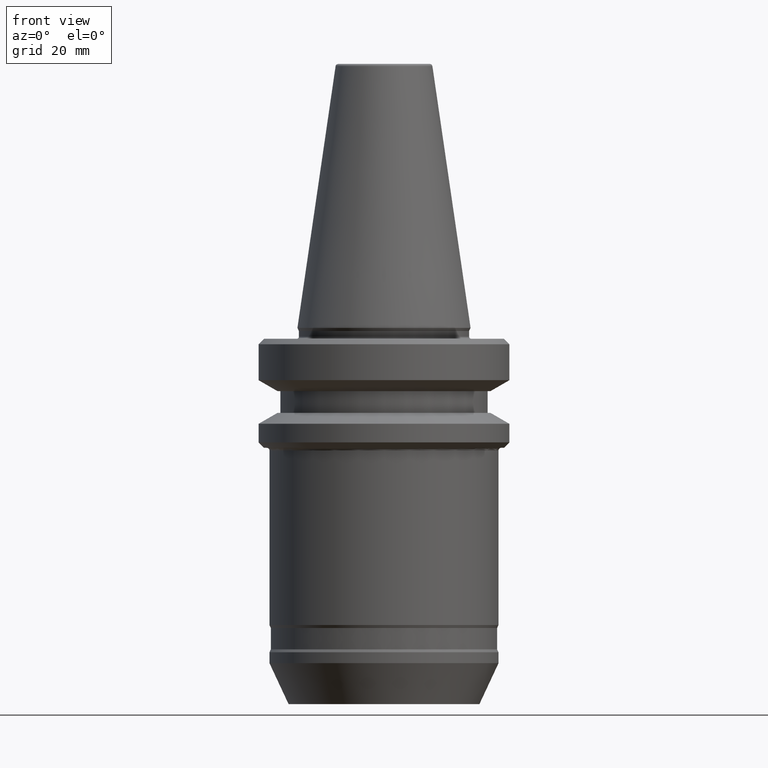
[diagram: clean part render]
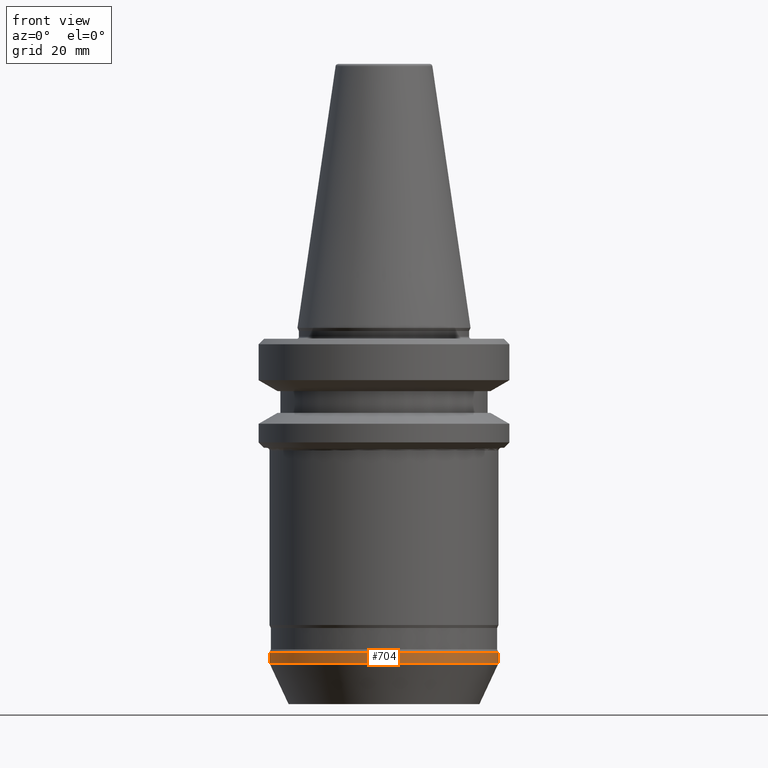
[diagram: same view with one face highlighted and labeled with its STEP entity id]
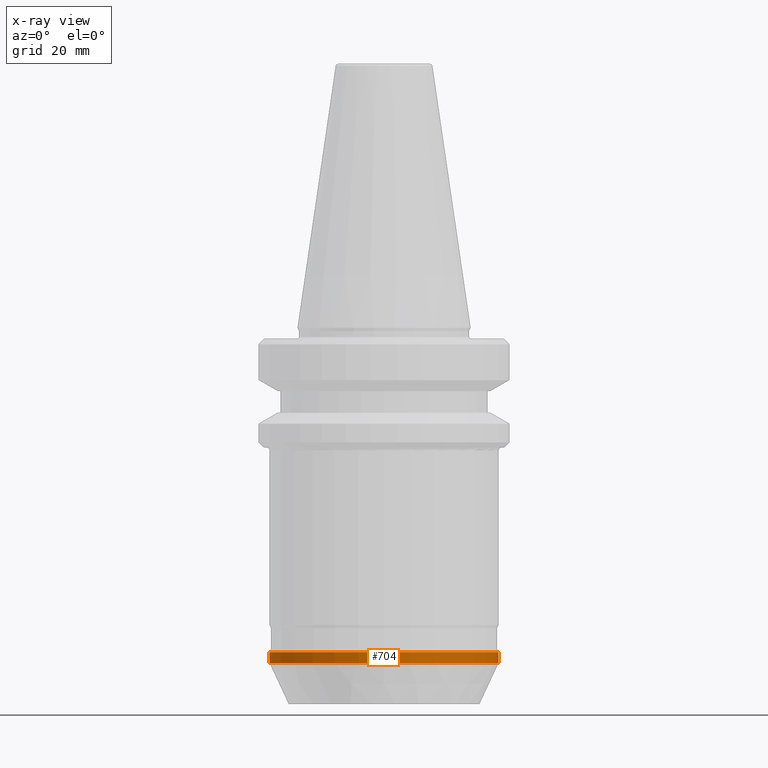
[diagram: x-ray of the same camera — body ghosted, the highlighted face saturated]
A machine part, front view. The second image highlights one B-rep face of the part: STEP entity #704.
The next image is the same camera in x-ray: the body ghosted, the highlighted face saturated — about 0% of this face is hidden behind the body in this view.
In plain terms, the highlighted cylindrical surface (partial cylindrical patch) has radius 21 mm, axis along (-0, -0, 1).
Its self-contained STEP definition (entity closure, byte-faithful):
#10 = CYLINDRICAL_SURFACE ( 'NONE', #364, 20.99999999997725900 ) ;
#101 = VERTEX_POINT ( 'NONE', #481 ) ;
#109 = CARTESIAN_POINT ( 'NONE',  ( 0.0000000000000000000, 0.0000000000000000000, -59.50422577821979100 ) ) ;
#143 = CARTESIAN_POINT ( 'NONE',  ( 0.0000000000000000000, 0.0000000000000000000, -61.49422577821994900 ) ) ;
#191 = LINE ( 'NONE', #657, #1041 ) ;
#205 = DIRECTION ( 'NONE',  ( 1.000000000000000000, 0.0000000000000000000, 0.0000000000000000000 ) ) ;
#239 = DIRECTION ( 'NONE',  ( 1.000000000000000000, 0.0000000000000000000, 0.0000000000000000000 ) ) ;
#281 = CIRCLE ( 'NONE', #573, 20.99999999997725900 ) ;
#291 = EDGE_CURVE ( 'NONE', #325, #403, #1134, .T. ) ;
#306 = ORIENTED_EDGE ( 'NONE', *, *, #822, .T. ) ;
#325 = VERTEX_POINT ( 'NONE', #486 ) ;
#352 = DIRECTION ( 'NONE',  ( -0.0000000000000000000, -0.0000000000000000000, 1.000000000000000000 ) ) ;
#363 = CIRCLE ( 'NONE', #1201, 20.99999999997725900 ) ;
#364 = AXIS2_PLACEMENT_3D ( 'NONE', #447, #352, #539 ) ;
#382 = EDGE_CURVE ( 'NONE', #101, #403, #363, .T. ) ;
#403 = VERTEX_POINT ( 'NONE', #839 ) ;
#447 = CARTESIAN_POINT ( 'NONE',  ( 0.0000000000000000000, 0.0000000000000000000, 85.12022969343338700 ) ) ;
#481 = CARTESIAN_POINT ( 'NONE',  ( -20.99999999997725900, 2.571758278206657000E-015, -59.50422577821979100 ) ) ;
#486 = CARTESIAN_POINT ( 'NONE',  ( 20.99999999997725900, 0.0000000000000000000, -61.49422577821994900 ) ) ;
#488 = DIRECTION ( 'NONE',  ( -0.0000000000000000000, -0.0000000000000000000, 1.000000000000000000 ) ) ;
#539 = DIRECTION ( 'NONE',  ( 1.000000000000000000, 0.0000000000000000000, 0.0000000000000000000 ) ) ;
#551 = VECTOR ( 'NONE', #763, 1000.000000000000000 ) ;
#572 = ORIENTED_EDGE ( 'NONE', *, *, #1120, .F. ) ;
#573 = AXIS2_PLACEMENT_3D ( 'NONE', #143, #778, #239 ) ;
#581 = ORIENTED_EDGE ( 'NONE', *, *, #291, .T. ) ;
#589 = EDGE_LOOP ( 'NONE', ( #572, #306, #581, #1070 ) ) ;
#590 = CARTESIAN_POINT ( 'NONE',  ( 20.99999999997725900, 0.0000000000000000000, 85.12022969343338700 ) ) ;
#657 = CARTESIAN_POINT ( 'NONE',  ( -20.99999999997725900, 2.571758278206657000E-015, 85.12022969343338700 ) ) ;
#704 = ADVANCED_FACE ( 'NONE', ( #706 ), #10, .T. ) ;
#706 = FACE_OUTER_BOUND ( 'NONE', #589, .T. ) ;
#723 = VERTEX_POINT ( 'NONE', #1085 ) ;
#746 = DIRECTION ( 'NONE',  ( -0.0000000000000000000, -0.0000000000000000000, 1.000000000000000000 ) ) ;
#763 = DIRECTION ( 'NONE',  ( -0.0000000000000000000, -0.0000000000000000000, 1.000000000000000000 ) ) ;
#778 = DIRECTION ( 'NONE',  ( -0.0000000000000000000, -0.0000000000000000000, 1.000000000000000000 ) ) ;
#822 = EDGE_CURVE ( 'NONE', #723, #325, #281, .T. ) ;
#839 = CARTESIAN_POINT ( 'NONE',  ( 20.99999999997725900, 0.0000000000000000000, -59.50422577821979100 ) ) ;
#1041 = VECTOR ( 'NONE', #488, 1000.000000000000000 ) ;
#1070 = ORIENTED_EDGE ( 'NONE', *, *, #382, .F. ) ;
#1085 = CARTESIAN_POINT ( 'NONE',  ( -20.99999999997725900, 2.571758278206657000E-015, -61.49422577821994900 ) ) ;
#1120 = EDGE_CURVE ( 'NONE', #723, #101, #191, .T. ) ;
#1134 = LINE ( 'NONE', #590, #551 ) ;
#1201 = AXIS2_PLACEMENT_3D ( 'NONE', #109, #746, #205 ) ;